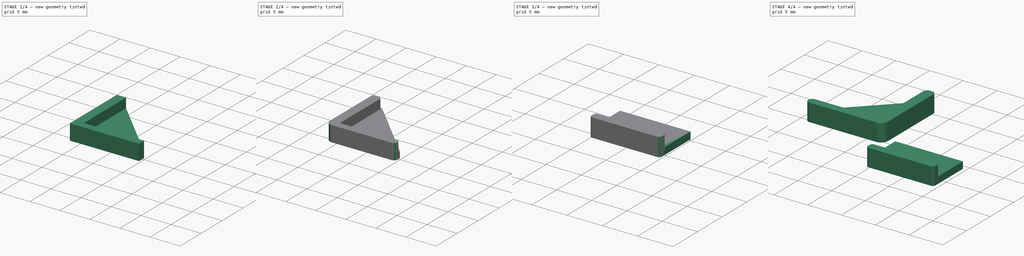
[diagram: build sequence overview — one tinted view per stage of 4, left to right]
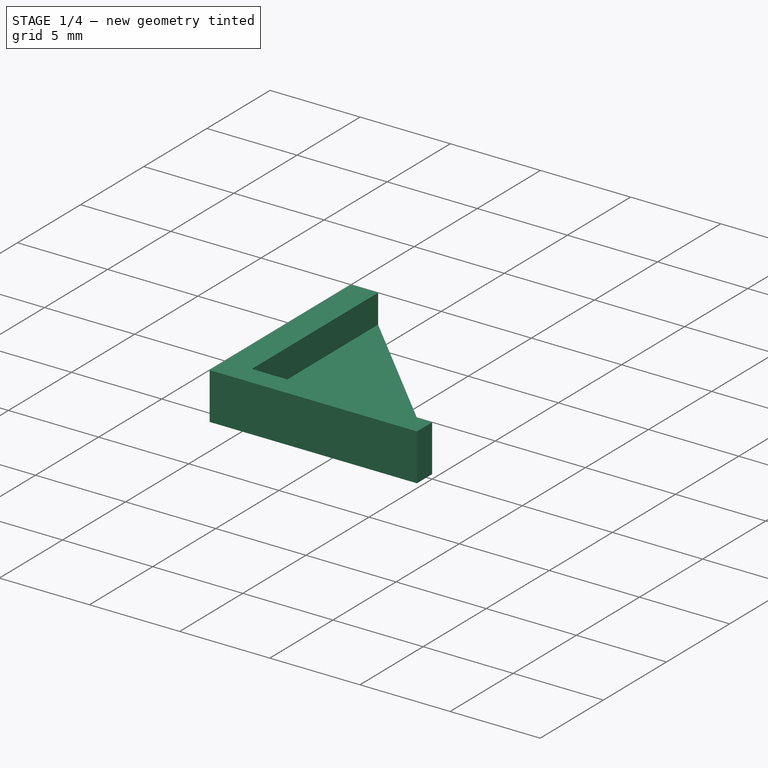
[diagram: stage 1 of 4 — iso view after this stage's code; geometry added in this stage tinted green]
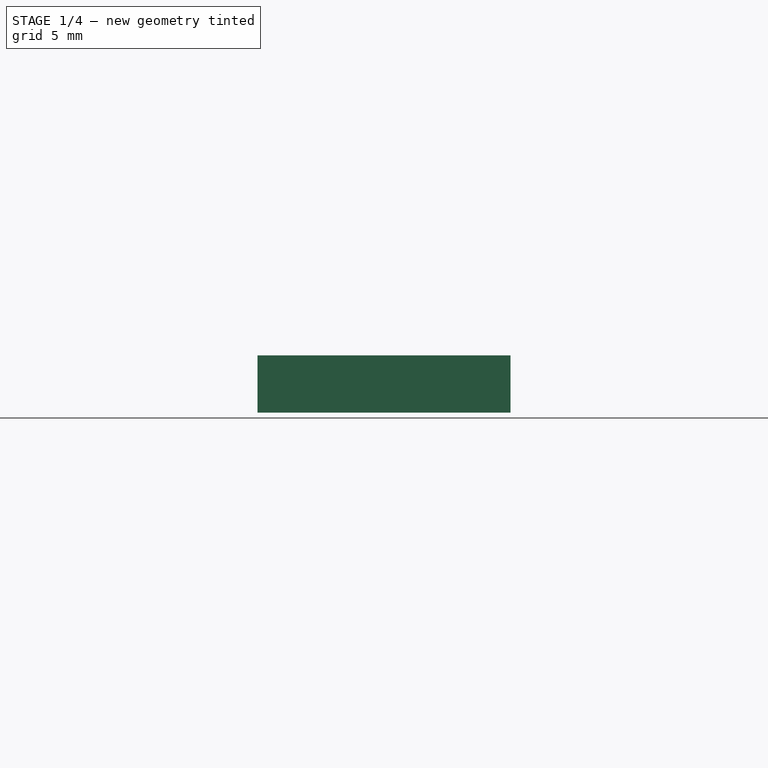
[diagram: stage 1 of 4 — front view after this stage's code; geometry added in this stage tinted green]
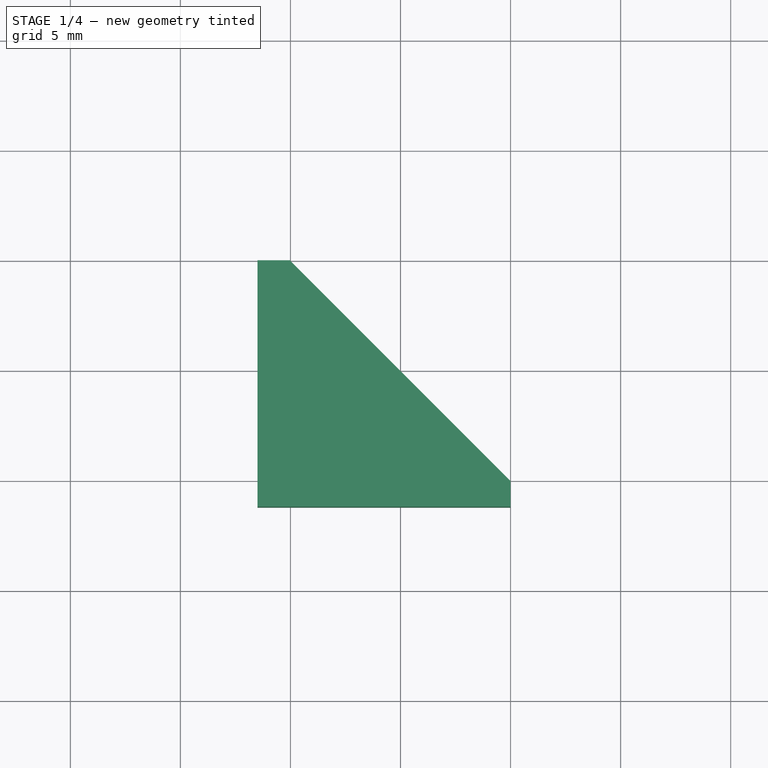
[diagram: stage 1 of 4 — top view after this stage's code; geometry added in this stage tinted green]
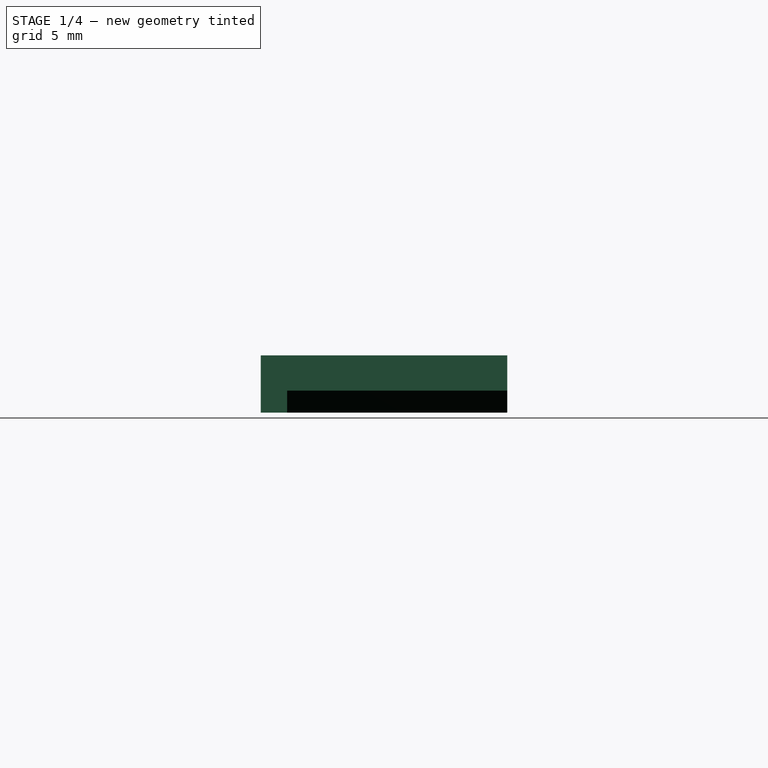
[diagram: stage 1 of 4 — right view after this stage's code; geometry added in this stage tinted green]
FCSTD DOCUMENT  (FreeCAD 0.21R33771 (Git))
Label: Padding
License: All rights reserved
LicenseURL: http://en.wikipedia.org/wiki/All_rights_reserved
objects: Sketcher::SketchObject×4, PartDesign::Pad×4, PartDesign::Fillet×4, PartDesign::Body×2, Part::FeaturePython×2, PartDesign::SubShapeBinder×1
note: 25 computed .brp shape members not serialized (recipe doc carries the construction recipe); baked Part::Feature solids carry a one-line shape summary decoded from their .brp

FEATURE [Sketcher::SketchObject] Sketch
  FullyConstrained = true
  MapMode = 5
  Support = -> [XY_Plane]
  expr: Constraints[16] = .Constraints.Size
  sketch-geometry (6):
    g0: LineSegment StartX=0 StartY=10 StartZ=0 EndX=-1.5 EndY=10 EndZ=0
    g1: LineSegment StartX=-1.5 StartY=10 StartZ=0 EndX=-1.5 EndY=-1.2 EndZ=0
    g2: LineSegment StartX=-1.5 StartY=-1.2 StartZ=0 EndX=10 EndY=-1.2 EndZ=0
    g3: LineSegment StartX=10 StartY=-1.2 StartZ=0 EndX=10 EndY=0 EndZ=0
    g4: LineSegment StartX=10 StartY=0 StartZ=0 EndX=0 EndY=0 EndZ=0
    g5: LineSegment StartX=0 StartY=0 StartZ=0 EndX=0 EndY=10 EndZ=0
  constraints (17):
    c: PointOnObject(g0,g-2)
    c: Horizontal(g0)
    c: Coincident(g0,g1)
    c: Vertical(g1)
    c: Coincident(g1,g2)
    c: Horizontal(g2)
    c: Coincident(g2,g3)
    c: PointOnObject(g3,g-1)
    c: Vertical(g3)
    c: Coincident(g3,g4)
    c: Coincident(g4,g-1)
    c: Coincident(g4,g5)
    c: Coincident(g5,g0)
    c: DistanceX(g0,g0) = 1.5  'Padding'
    c: DistanceY(g3,g3) = 1.2
    c: DistanceY(g5,g5) = 10  'Size'
    c: DistanceX(g4,g4) = 10
FEATURE [PartDesign::Pad] Pad
  Direction = (0,0,1)
  Length = 1.6
  Length2 = 10
  Profile = -> Sketch
  ReferenceAxis = -> Sketch [N_Axis]
  Type = 0
FEATURE [Sketcher::SketchObject] Sketch001
  ExternalGeometry = -> [Sketch]
  FullyConstrained = true
  MapMode = 5
  Support = -> [XY_Plane]
  sketch-geometry (5):
    g0: LineSegment StartX=-1.5 StartY=10 StartZ=0 EndX=-1.5 EndY=-1.2 EndZ=0
    g1: LineSegment StartX=-1.5 StartY=-1.2 StartZ=0 EndX=10 EndY=-1.2 EndZ=0
    g2: LineSegment StartX=10 StartY=-1.2 StartZ=0 EndX=10 EndY=0 EndZ=0
    g3: LineSegment StartX=10 StartY=0 StartZ=0 EndX=0 EndY=10 EndZ=0
    g4: LineSegment StartX=0 StartY=10 StartZ=0 EndX=-1.5 EndY=10 EndZ=0
  constraints (13):
    c: Coincident(g0,g-3)
    c: Vertical(g0)
    c: Coincident(g0,g1)
    c: Coincident(g1,g-4)
    c: Coincident(g1,g2)
    c: PointOnObject(g2,g-1)
    c: Vertical(g2)
    c: Coincident(g2,g3)
    c: PointOnObject(g3,g-2)
    c: Coincident(g3,g4)
    c: Coincident(g4,g0)
    c: Horizontal(g4)
    c: Horizontal(g1)
FEATURE [PartDesign::Pad] Pad001
  BaseFeature = -> Pad
  Direction = (0,0,1)
  Length = 1
  Length2 = 10
  Profile = -> Sketch001
  ReferenceAxis = -> Sketch001 [N_Axis]
  Refine = true
  Reversed = true
  Type = 0
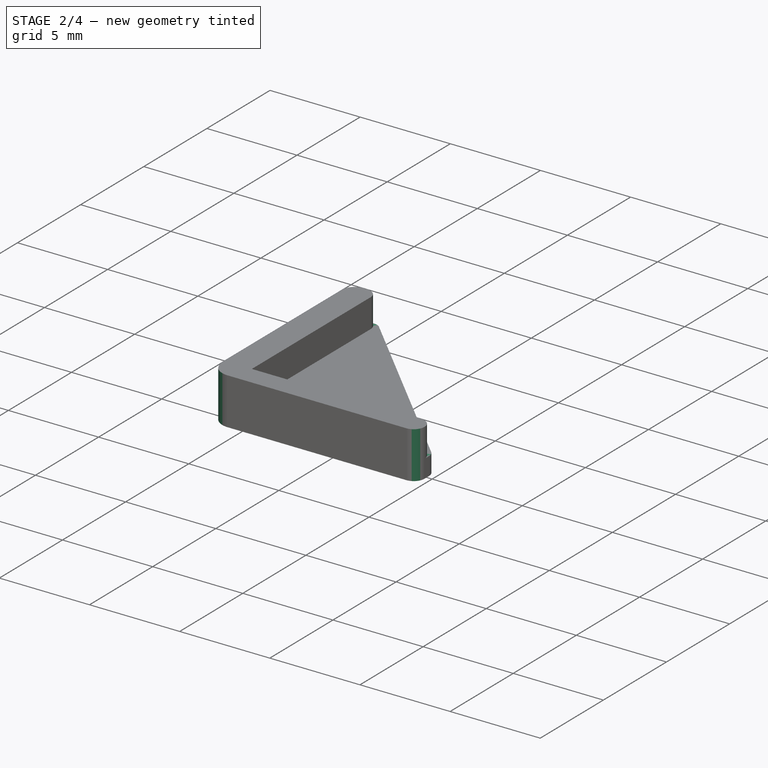
[diagram: stage 2 of 4 — iso view after this stage's code; geometry added in this stage tinted green]
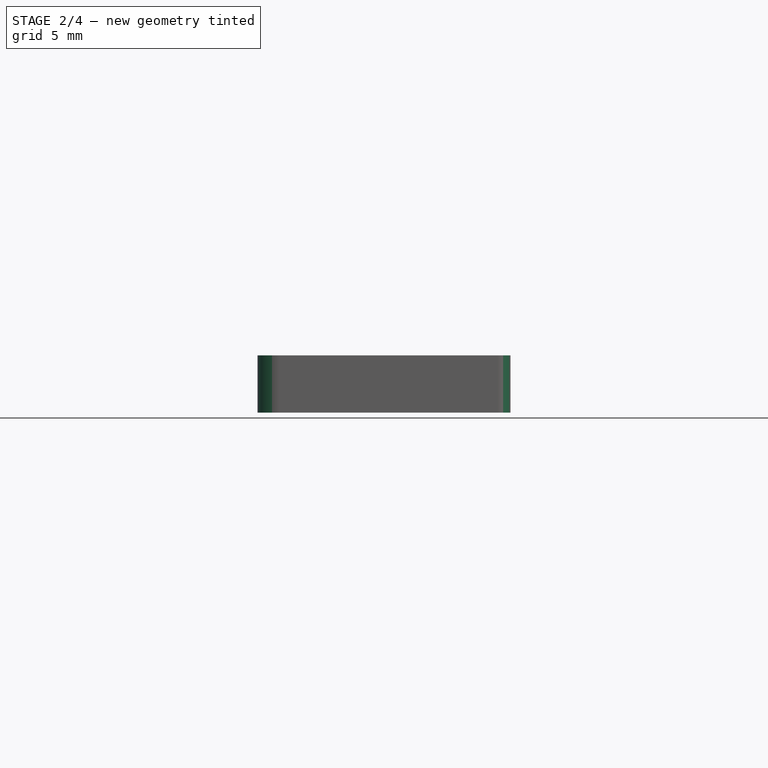
[diagram: stage 2 of 4 — front view after this stage's code; geometry added in this stage tinted green]
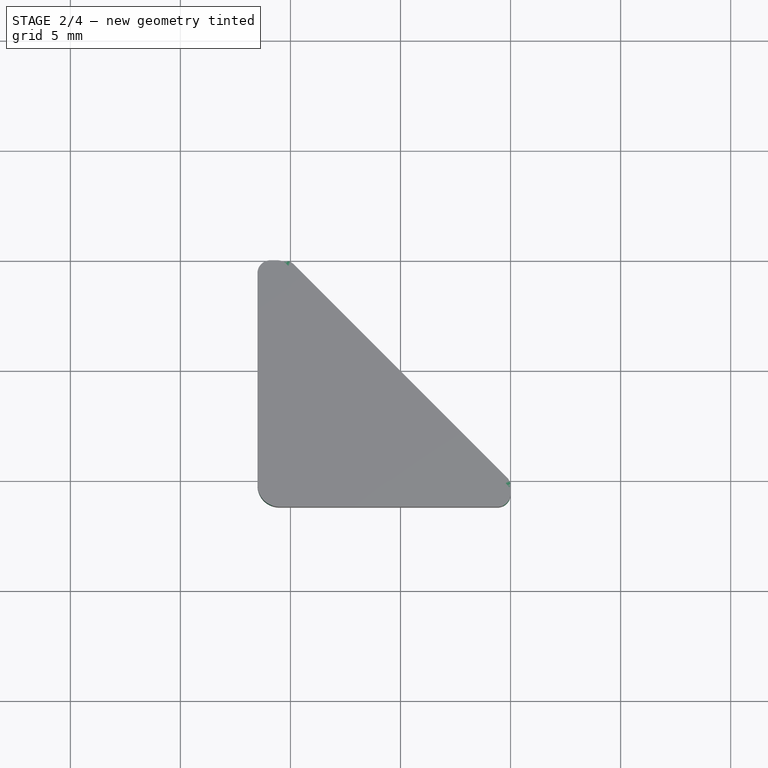
[diagram: stage 2 of 4 — top view after this stage's code; geometry added in this stage tinted green]
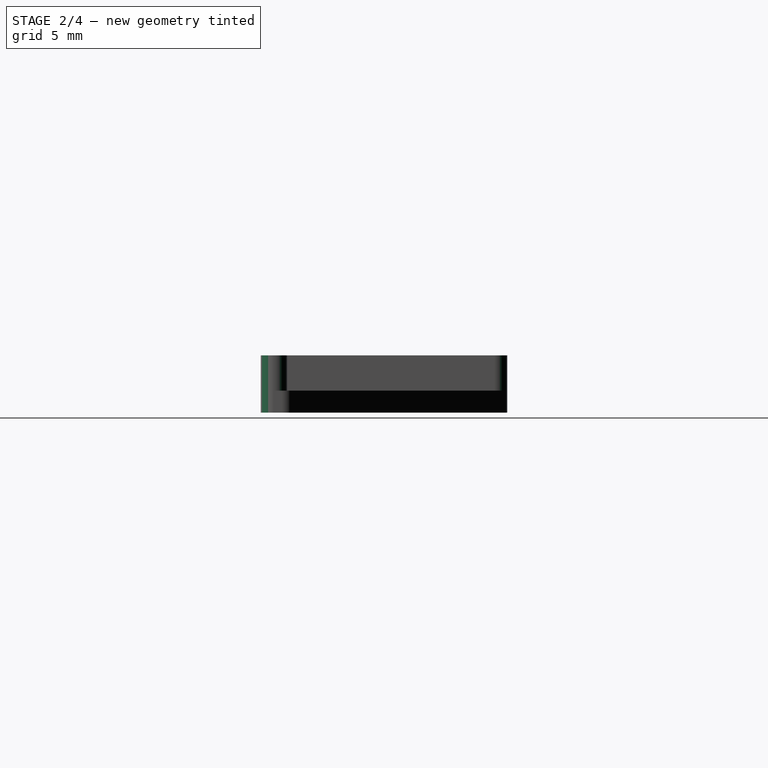
[diagram: stage 2 of 4 — right view after this stage's code; geometry added in this stage tinted green]
FEATURE [PartDesign::Fillet] Fillet
  Base = -> Pad001 [Edge21]
  BaseFeature = -> Pad001
  Radius = 1
  SupportTransform = false
  UseAllEdges = false
FEATURE [PartDesign::Body] Body001  label="Linear"
  Group = -> [Sketch002,Binder,Pad002,Sketch003,Pad003,Fillet001]
  Origin = -> Origin001
  Tip = -> Fillet001
FEATURE [PartDesign::Fillet] Fillet002
  Base = -> Fillet [Edge13,Edge17,Edge22,Edge10]
  BaseFeature = -> Fillet
  Radius = 0.59
  SupportTransform = false
  UseAllEdges = false
FEATURE [PartDesign::Fillet] Fillet003
  Base = -> Fillet002 [Edge32,Edge20]
  BaseFeature = -> Fillet002
  Radius = 0.59
  Refine = true
  SupportTransform = false
  UseAllEdges = false
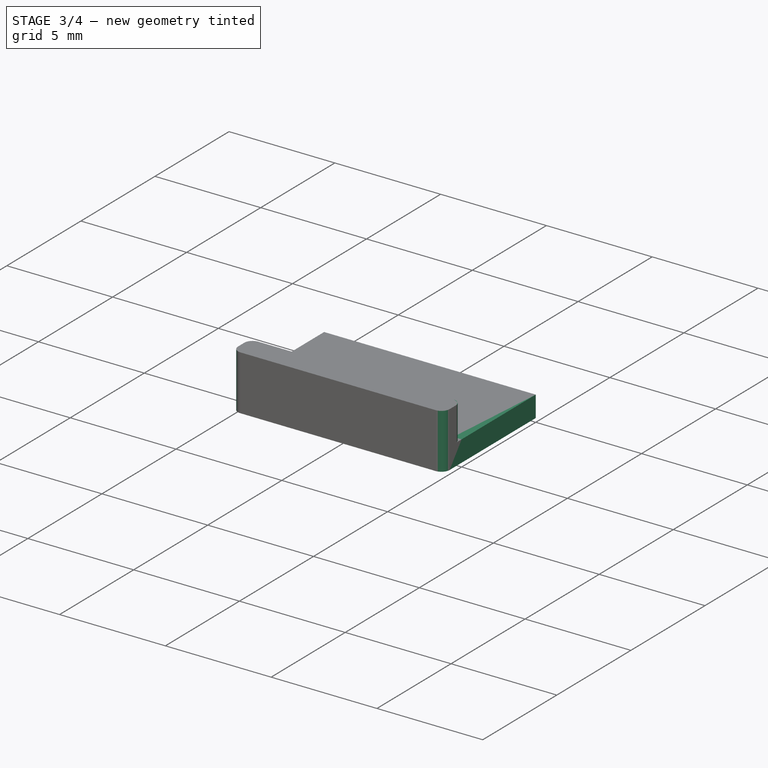
[diagram: stage 3 of 4 — iso view after this stage's code; geometry added in this stage tinted green]
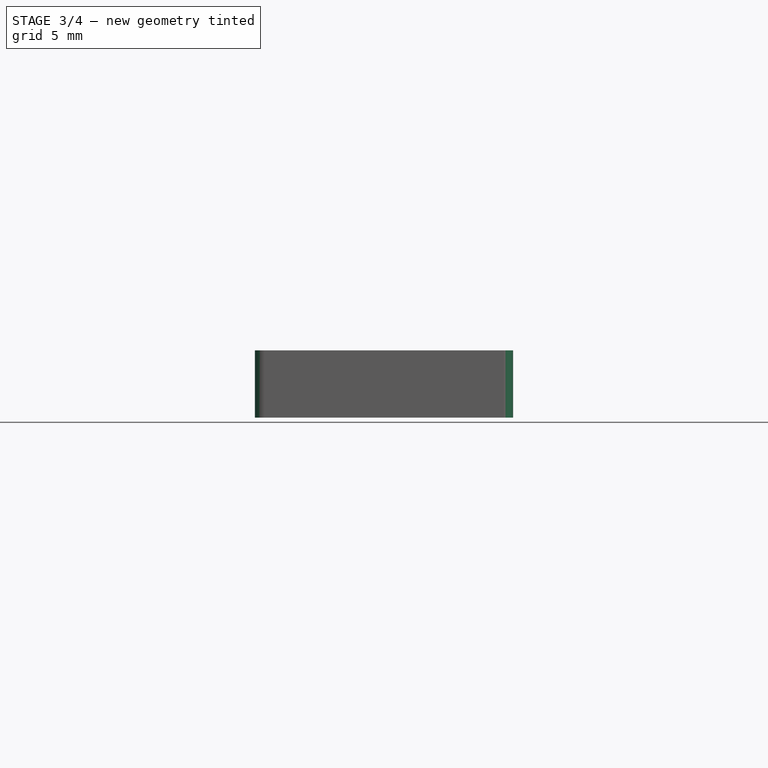
[diagram: stage 3 of 4 — front view after this stage's code; geometry added in this stage tinted green]
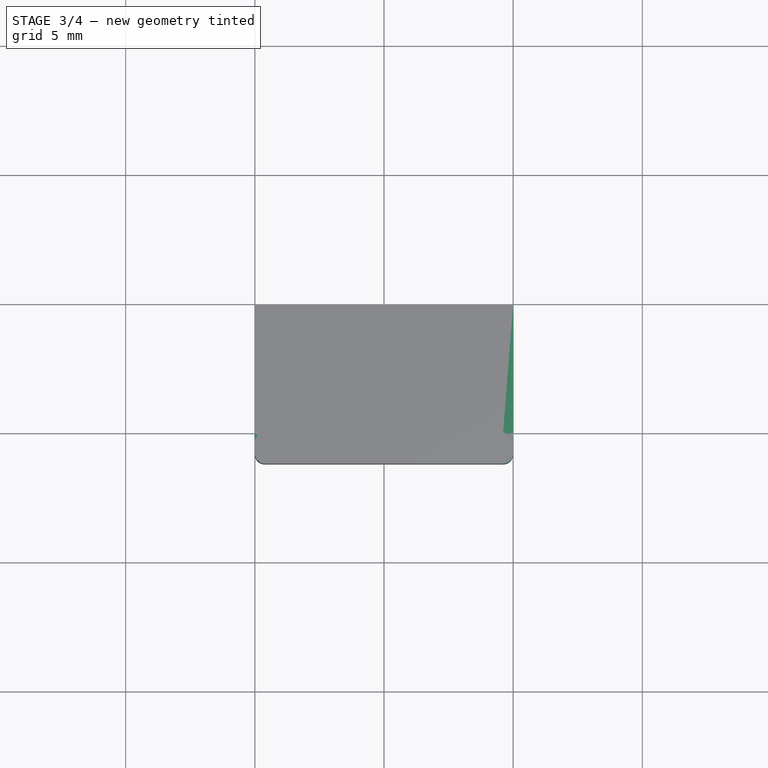
[diagram: stage 3 of 4 — top view after this stage's code; geometry added in this stage tinted green]
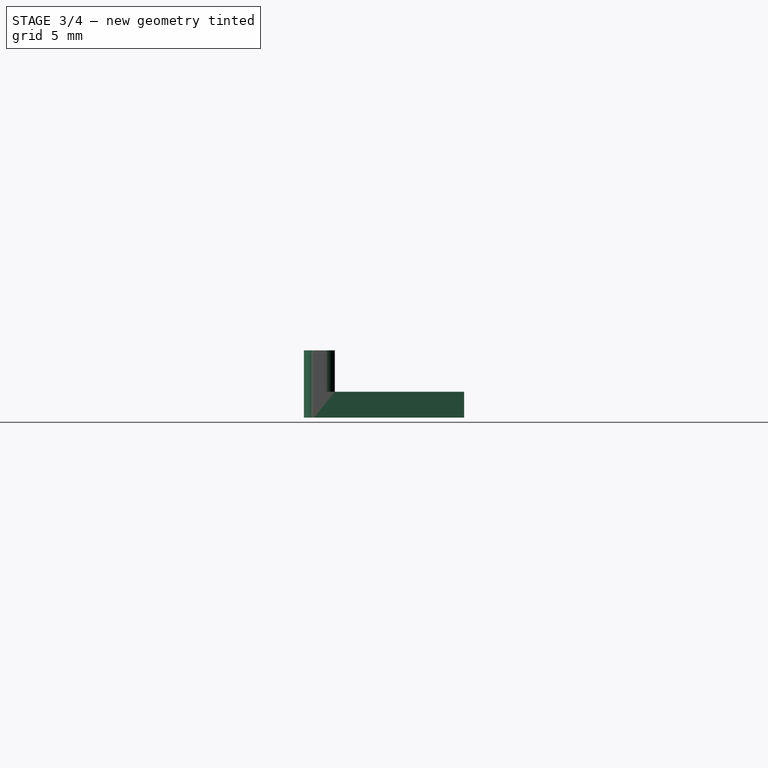
[diagram: stage 3 of 4 — right view after this stage's code; geometry added in this stage tinted green]
FEATURE [PartDesign::SubShapeBinder] Binder
  BindCopyOnChange = 0
  BindMode = 0
  ClaimChildren = false
  Context = -> Body001 [Binder.]
  Fuse = false
  MakeFace = true
  OffsetFill = false
  OffsetIntersection = false
  OffsetJoinType = 0
  OffsetOpenResult = false
  PartialLoad = false
  Relative = true
  Support = -> [Body[Pad.Sketch.]]
  _Version = 2
FEATURE [Sketcher::SketchObject] Sketch002
  ExternalGeometry = -> [Binder]
  FullyConstrained = true
  MapMode = 5
  Support = -> [XY_Plane001]
  sketch-geometry (4):
    g0: LineSegment StartX=10 StartY=-1.2 StartZ=0 EndX=0 EndY=-1.2 EndZ=0
    g1: LineSegment StartX=0 StartY=-1.2 StartZ=0 EndX=0 EndY=0 EndZ=0
    g2: LineSegment StartX=0 StartY=0 StartZ=0 EndX=10 EndY=0 EndZ=0
    g3: LineSegment StartX=10 StartY=0 StartZ=0 EndX=10 EndY=-1.2 EndZ=0
  constraints (10):
    c: Coincident(g0,g1)
    c: Coincident(g1,g2)
    c: Coincident(g2,g3)
    c: Coincident(g3,g0)
    c: Horizontal(g0)
    c: Horizontal(g2)
    c: Vertical(g1)
    c: Vertical(g3)
    c: Coincident(g0,g-3)
    c: Coincident(g1,g-1)
FEATURE [PartDesign::Pad] Pad002
  Direction = (0,0,1)
  Length = 1.6
  Length2 = 10
  Profile = -> Sketch002
  ReferenceAxis = -> Sketch002 [N_Axis]
  Type = 0
FEATURE [Sketcher::SketchObject] Sketch003
  ExternalGeometry = -> [Pad002]
  FullyConstrained = true
  MapMode = 5
  Support = -> [XY_Plane001]
  sketch-geometry (4):
    g0: LineSegment StartX=10 StartY=-1.2 StartZ=0 EndX=0 EndY=-1.2 EndZ=0
    g1: LineSegment StartX=0 StartY=-1.2 StartZ=0 EndX=0 EndY=5 EndZ=0
    g2: LineSegment StartX=0 StartY=5 StartZ=0 EndX=10 EndY=5 EndZ=0
    g3: LineSegment StartX=10 StartY=5 StartZ=0 EndX=10 EndY=-1.2 EndZ=0
  constraints (11):
    c: Coincident(g0,g1)
    c: Coincident(g1,g2)
    c: Coincident(g2,g3)
    c: Coincident(g3,g0)
    c: Horizontal(g0)
    c: Horizontal(g2)
    c: Vertical(g1)
    c: Vertical(g3)
    c: Coincident(g0,g-3)
    c: PointOnObject(g1,g-2)
    c: DistanceY(g-1,g1) = 5
FEATURE [PartDesign::Pad] Pad003
  BaseFeature = -> Pad002
  Direction = (0,0,1)
  Length = 1
  Length2 = 10
  Profile = -> Sketch003
  ReferenceAxis = -> Sketch003 [N_Axis]
  Refine = true
  Reversed = true
  Type = 0
FEATURE [PartDesign::Fillet] Fillet001
  Base = -> Pad003 [Edge17,Edge18,Edge6,Edge5]
  BaseFeature = -> Pad003
  Radius = 0.39
  SupportTransform = false
  UseAllEdges = false
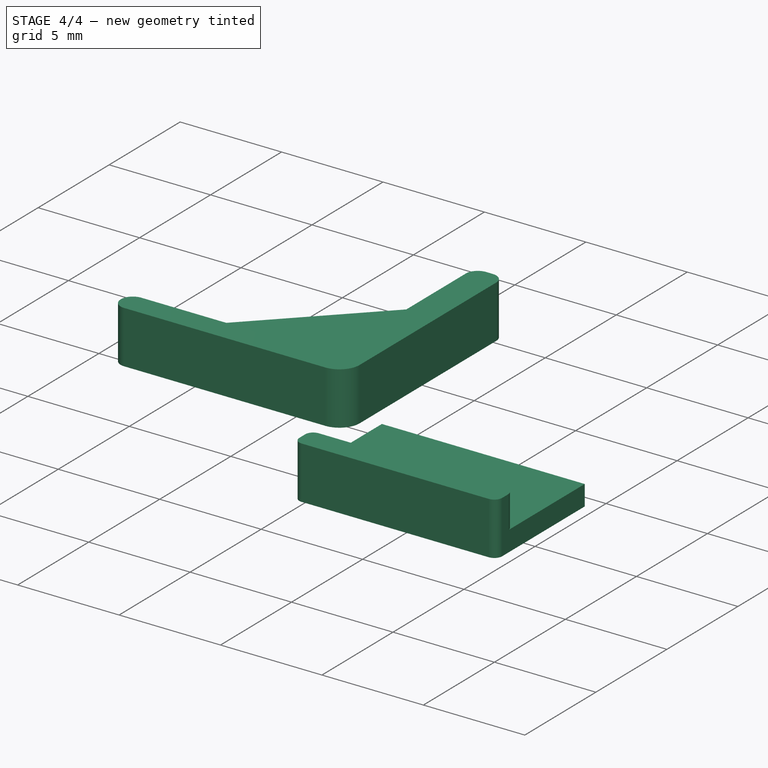
[diagram: stage 4 of 4 — iso view after this stage's code; geometry added in this stage tinted green]
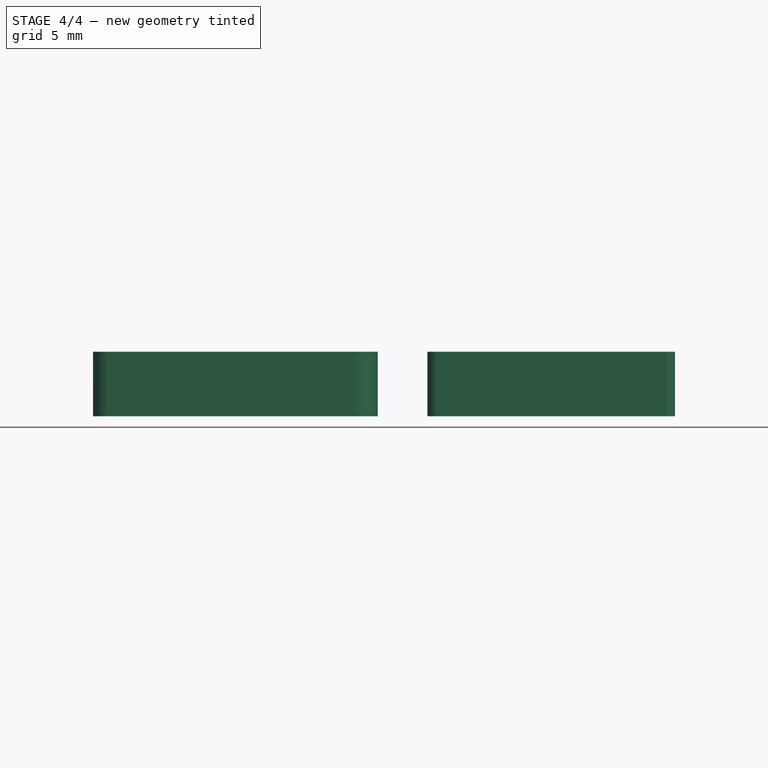
[diagram: stage 4 of 4 — front view after this stage's code; geometry added in this stage tinted green]
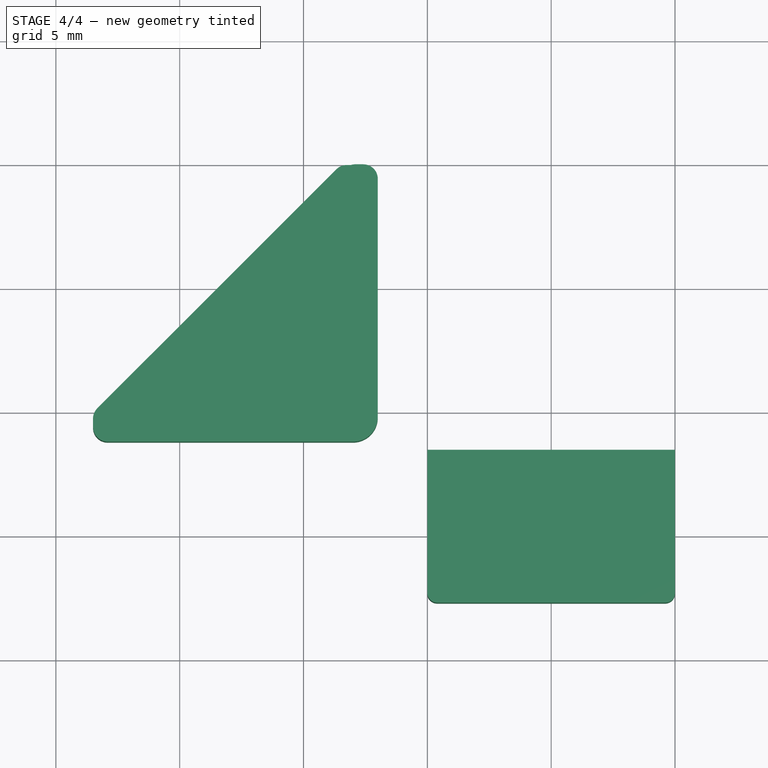
[diagram: stage 4 of 4 — top view after this stage's code; geometry added in this stage tinted green]
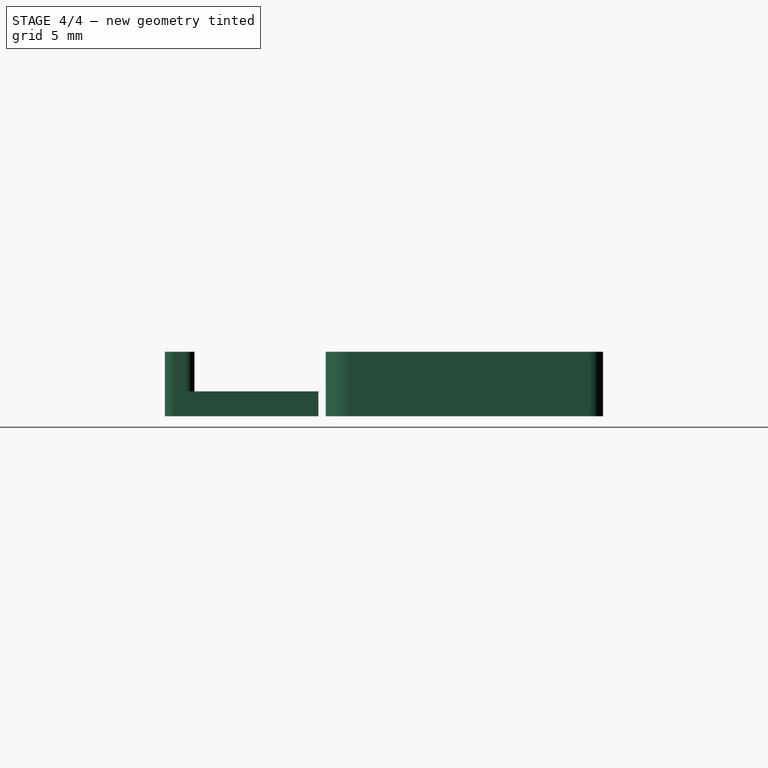
[diagram: stage 4 of 4 — right view after this stage's code; geometry added in this stage tinted green]
FEATURE [PartDesign::Body] Body  label="LeftCorner"
  Group = -> [Sketch,Pad,Sketch001,Pad001,Fillet,Fillet002,Fillet003]
  Origin = -> Origin
  Tip = -> Fillet003
FEATURE [Part::FeaturePython] Clone  label="RightCorner"  # Draft clone (typed FeaturePython)
  AttacherType = Attacher::AttachEngine3D
  Fuse = false
  Objects = -> [Body]
  Placement = pos=(-3.5,0,0) rot=(0,0,1;0rad)
  Scale = (-1,1,1)
FEATURE [Part::FeaturePython] Clone001  label="Bottom"  # Draft clone (typed FeaturePython)
  AttacherType = Attacher::AttachEngine3D
  Fuse = false
  Objects = -> [Body001]
  Placement = pos=(0,-6.5,0) rot=(0,0,1;0rad)
  Scale = (1,1,1)
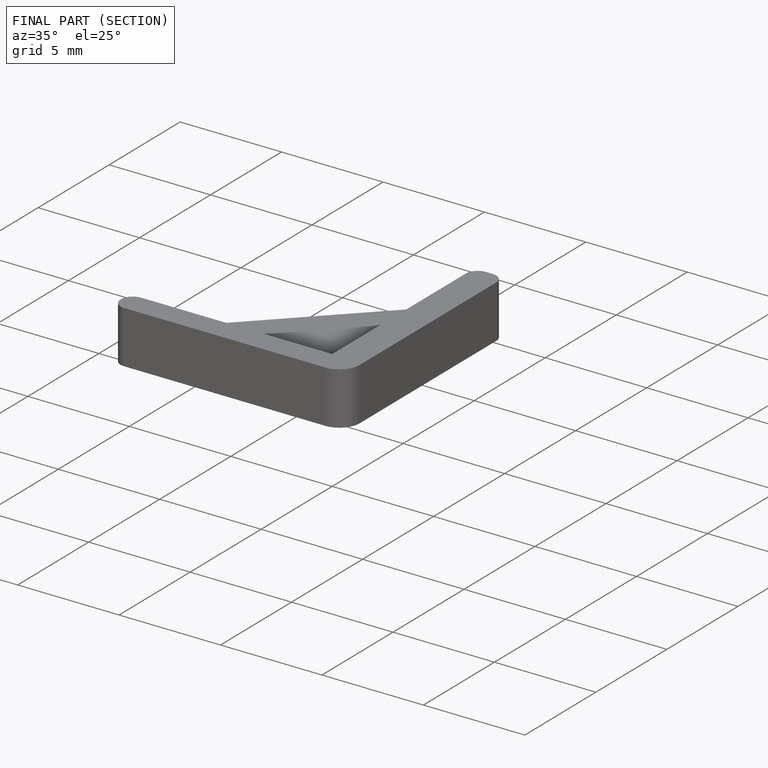
[diagram: finished part — half-section view (interior)]
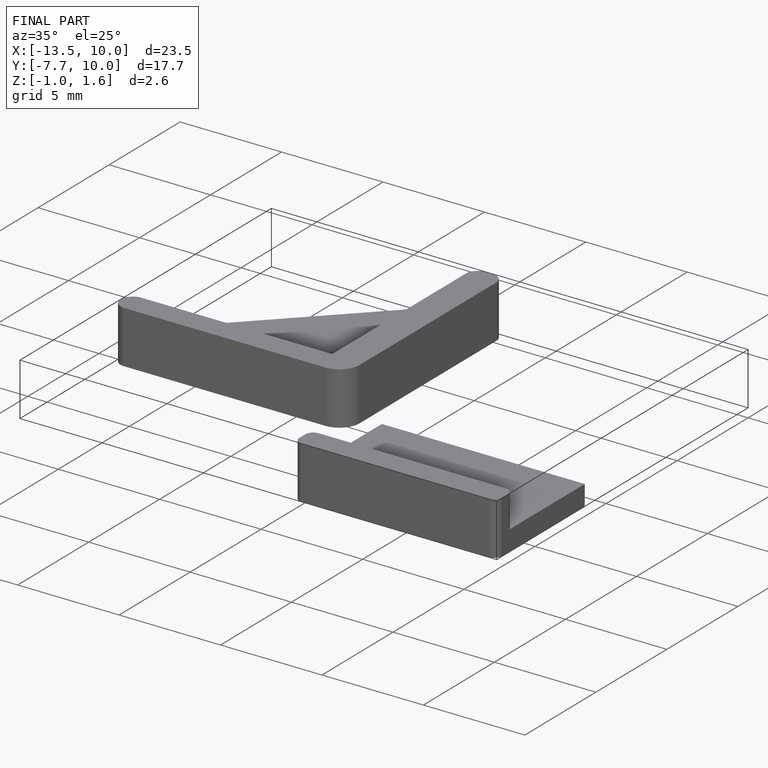
[diagram: finished part — iso view with bounding-box wireframe]
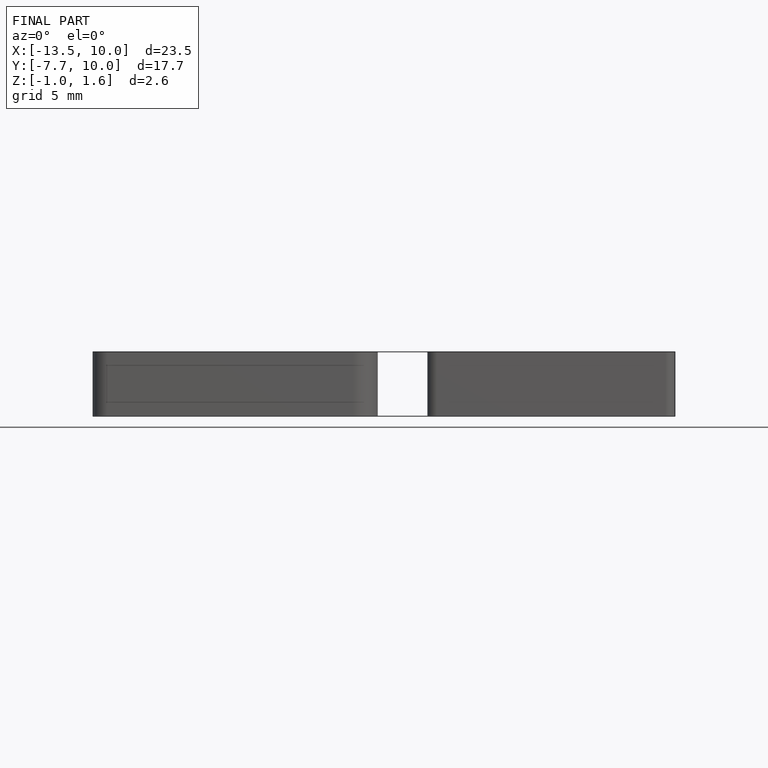
[diagram: finished part — front view with bounding-box wireframe]
